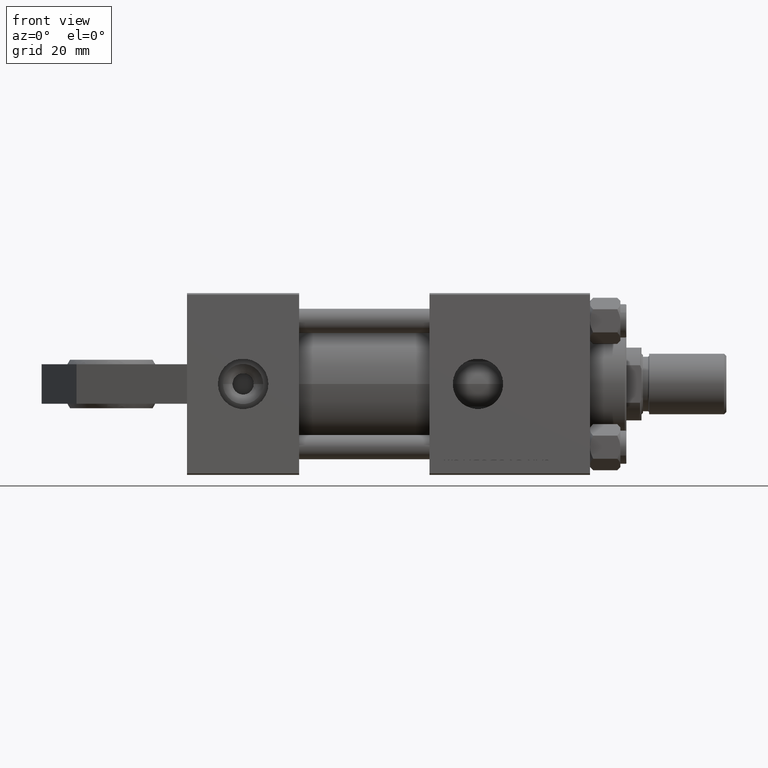
[diagram: clean part render]
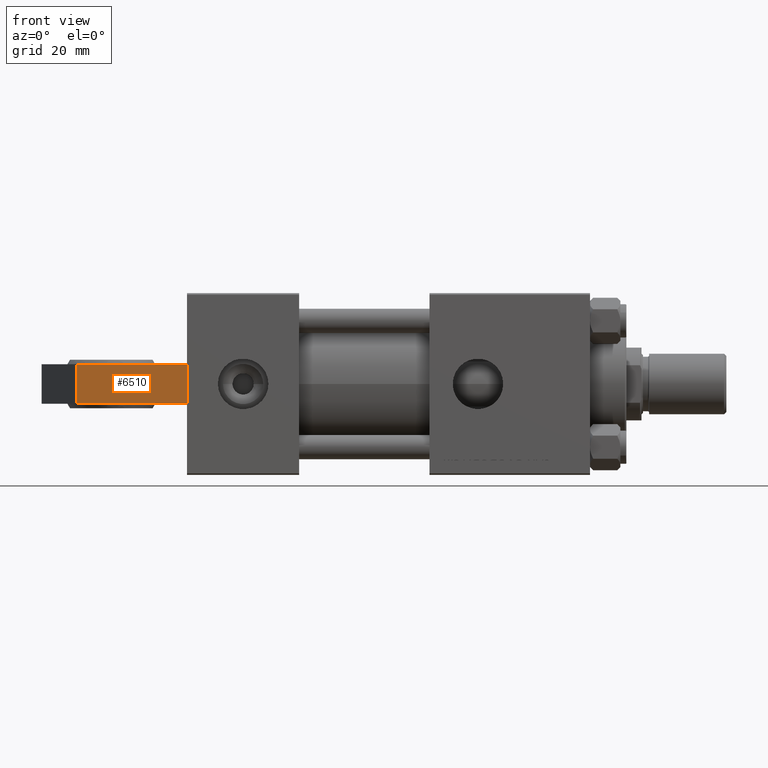
[diagram: same view with one face highlighted and labeled with its STEP entity id]
A machine part, front view. The second image highlights one B-rep face of the part: STEP entity #6510.
In plain terms, the highlighted planar face has unit normal (-0.2588, -0.9659, 0).
Its self-contained STEP definition (entity closure, byte-faithful):
#479 = CARTESIAN_POINT ( 'NONE',  ( -36.50000000000000711, -6.500000000000000000, 20.21985447626385124 ) ) ;
#1162 = CARTESIAN_POINT ( 'NONE',  ( -36.50000000000000711, 6.500000000000000000, 20.21985447626385124 ) ) ;
#5035 = DIRECTION ( 'NONE',  ( 0.9659258262890672020, 0.000000000000000000, 0.2588190451025247363 ) ) ;
#6510 = ADVANCED_FACE ( 'NONE', ( #35632 ), #39510, .T. ) ;
#7163 = CARTESIAN_POINT ( 'NONE',  ( -36.50000000000000711, 6.500000000000000000, 20.21985447626385124 ) ) ;
#8309 = CARTESIAN_POINT ( 'NONE',  ( 0.000000000000000000, -6.500000000000000000, 29.99999999999999289 ) ) ;
#8882 = LINE ( 'NONE', #1162, #23917 ) ;
#10945 = ORIENTED_EDGE ( 'NONE', *, *, #20098, .T. ) ;
#12211 = ORIENTED_EDGE ( 'NONE', *, *, #35468, .F. ) ;
#13516 = VECTOR ( 'NONE', #23668, 1000.000000000000000 ) ;
#18598 = EDGE_CURVE ( 'NONE', #34349, #23367, #8882, .T. ) ;
#19424 = VECTOR ( 'NONE', #27068, 1000.000000000000000 ) ;
#20098 = EDGE_CURVE ( 'NONE', #48523, #46456, #24387, .T. ) ;
#20452 = EDGE_LOOP ( 'NONE', ( #45142, #12211, #10945, #25303 ) ) ;
#23367 = VERTEX_POINT ( 'NONE', #40104 ) ;
#23668 = DIRECTION ( 'NONE',  ( 0.000000000000000000, 1.000000000000000000, 0.000000000000000000 ) ) ;
#23917 = VECTOR ( 'NONE', #5035, 1000.000000000000227 ) ;
#24387 = LINE ( 'NONE', #35941, #29652 ) ;
#24702 = AXIS2_PLACEMENT_3D ( 'NONE', #479, #35883, #32281 ) ;
#25303 = ORIENTED_EDGE ( 'NONE', *, *, #30542, .T. ) ;
#27068 = DIRECTION ( 'NONE',  ( 0.000000000000000000, 1.000000000000000000, 0.000000000000000000 ) ) ;
#27330 = LINE ( 'NONE', #43019, #19424 ) ;
#29652 = VECTOR ( 'NONE', #32594, 1000.000000000000227 ) ;
#30542 = EDGE_CURVE ( 'NONE', #46456, #23367, #43963, .T. ) ;
#32281 = DIRECTION ( 'NONE',  ( 0.9659258262890672020, 0.000000000000000000, 0.2588190451025247918 ) ) ;
#32594 = DIRECTION ( 'NONE',  ( 0.9659258262890672020, 0.000000000000000000, 0.2588190451025247363 ) ) ;
#34349 = VERTEX_POINT ( 'NONE', #7163 ) ;
#35468 = EDGE_CURVE ( 'NONE', #48523, #34349, #27330, .T. ) ;
#35632 = FACE_OUTER_BOUND ( 'NONE', #20452, .T. ) ;
#35883 = DIRECTION ( 'NONE',  ( -0.2588190451025247918, 0.000000000000000000, 0.9659258262890672020 ) ) ;
#35941 = CARTESIAN_POINT ( 'NONE',  ( -36.50000000000000711, -6.500000000000000000, 20.21985447626385124 ) ) ;
#39510 = PLANE ( 'NONE',  #24702 ) ;
#40104 = CARTESIAN_POINT ( 'NONE',  ( 0.000000000000000000, 6.500000000000000000, 29.99999999999999289 ) ) ;
#41713 = CARTESIAN_POINT ( 'NONE',  ( 0.000000000000000000, -6.500000000000000000, 29.99999999999999289 ) ) ;
#43019 = CARTESIAN_POINT ( 'NONE',  ( -36.50000000000000711, -6.500000000000000000, 20.21985447626385124 ) ) ;
#43800 = CARTESIAN_POINT ( 'NONE',  ( -36.50000000000000711, -6.500000000000000000, 20.21985447626385124 ) ) ;
#43963 = LINE ( 'NONE', #8309, #13516 ) ;
#45142 = ORIENTED_EDGE ( 'NONE', *, *, #18598, .F. ) ;
#46456 = VERTEX_POINT ( 'NONE', #41713 ) ;
#48523 = VERTEX_POINT ( 'NONE', #43800 ) ;